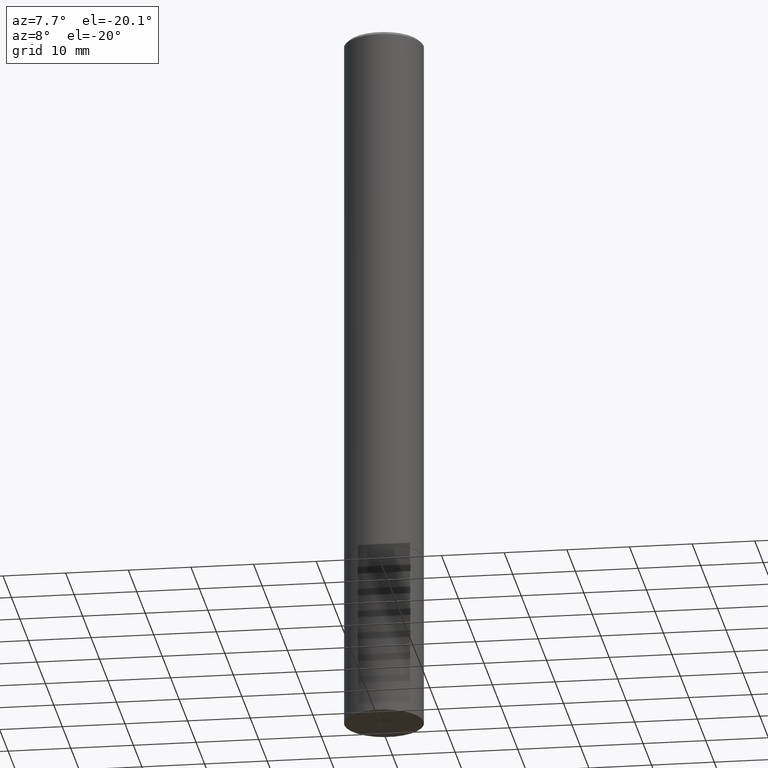
[diagram: clean part render]
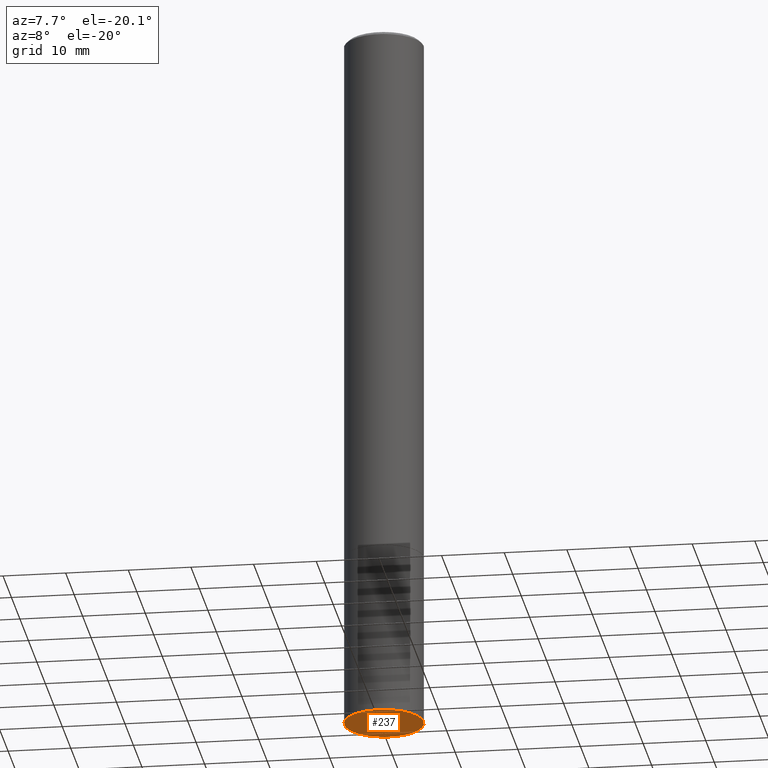
[diagram: same view with one face highlighted and labeled with its STEP entity id]
A machine part, auxiliary view. The second image highlights one B-rep face of the part: STEP entity #237.
In plain terms, the highlighted planar face has unit normal (0, -0, -1).
Its self-contained STEP definition (entity closure, byte-faithful):
#28 = CARTESIAN_POINT ( 'NONE',  ( -0.2500000000000000000, -1.202721463371612651E-14, -4.500000000000000000 ) ) ;
#34 = FACE_OUTER_BOUND ( 'NONE', #170, .T. ) ;
#58 = VERTEX_POINT ( 'NONE', #134 ) ;
#63 = CIRCLE ( 'NONE', #247, 0.2500000000000000000 ) ;
#64 = EDGE_CURVE ( 'NONE', #125, #58, #222, .T. ) ;
#97 = PLANE ( 'NONE',  #364 ) ;
#100 = DIRECTION ( 'NONE',  ( 1.000000000000000000, -6.982962677686270655E-15, 0.000000000000000000 ) ) ;
#103 = CARTESIAN_POINT ( 'NONE',  ( 1.100460962783311469E-28, -1.571166602479415690E-14, -4.500000000000000000 ) ) ;
#104 = DIRECTION ( 'NONE',  ( 2.438088387897960049E-29, -3.491481338843145188E-15, -1.000000000000000000 ) ) ;
#108 = DIRECTION ( 'NONE',  ( -2.445468806185136597E-29, 3.491481338843145583E-15, 1.000000000000000000 ) ) ;
#125 = VERTEX_POINT ( 'NONE', #28 ) ;
#134 = CARTESIAN_POINT ( 'NONE',  ( 0.2500000000000000000, -1.745740669421572357E-14, -4.500000000000000000 ) ) ;
#170 = EDGE_LOOP ( 'NONE', ( #366, #290 ) ) ;
#181 = CARTESIAN_POINT ( 'NONE',  ( 1.100460962783311469E-28, -1.571166602479415690E-14, -4.500000000000000000 ) ) ;
#189 = CARTESIAN_POINT ( 'NONE',  ( 1.745740669421676527E-15, 0.2499999999999842903, -4.500000000000000888 ) ) ;
#222 = CIRCLE ( 'NONE', #338, 0.2500000000000000000 ) ;
#237 = ADVANCED_FACE ( 'NONE', ( #34 ), #97, .T. ) ;
#247 = AXIS2_PLACEMENT_3D ( 'NONE', #181, #326, #100 ) ;
#278 = EDGE_CURVE ( 'NONE', #58, #125, #63, .T. ) ;
#290 = ORIENTED_EDGE ( 'NONE', *, *, #64, .F. ) ;
#293 = DIRECTION ( 'NONE',  ( -1.000000000000000000, 6.982962677686265922E-15, -4.876176775795935793E-29 ) ) ;
#301 = DIRECTION ( 'NONE',  ( 1.000000000000000000, -6.982962677686270655E-15, 0.000000000000000000 ) ) ;
#326 = DIRECTION ( 'NONE',  ( -2.445468806185136597E-29, 3.491481338843145583E-15, 1.000000000000000000 ) ) ;
#338 = AXIS2_PLACEMENT_3D ( 'NONE', #103, #108, #301 ) ;
#364 = AXIS2_PLACEMENT_3D ( 'NONE', #189, #104, #293 ) ;
#366 = ORIENTED_EDGE ( 'NONE', *, *, #278, .F. ) ;